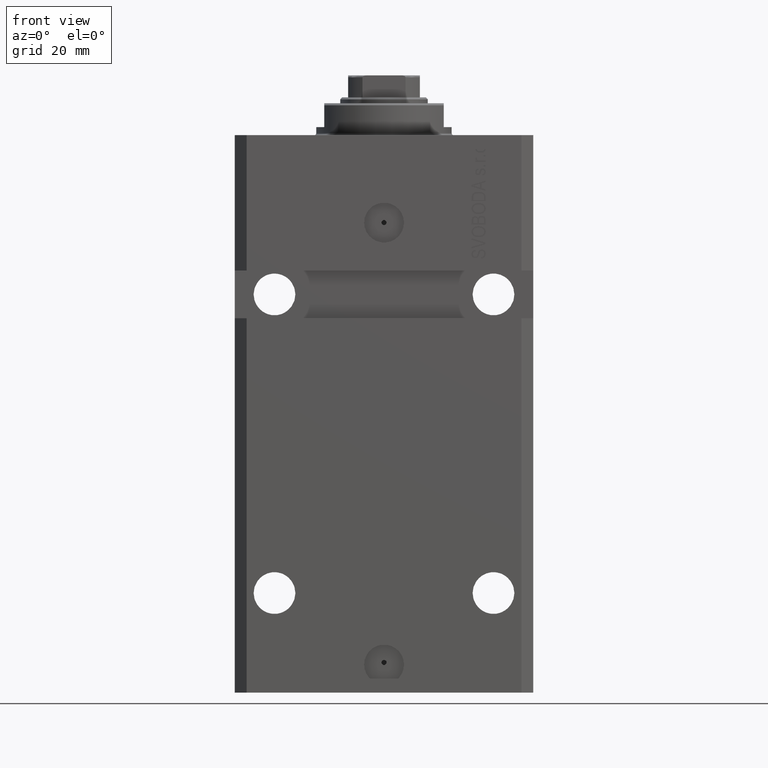
[diagram: clean part render]
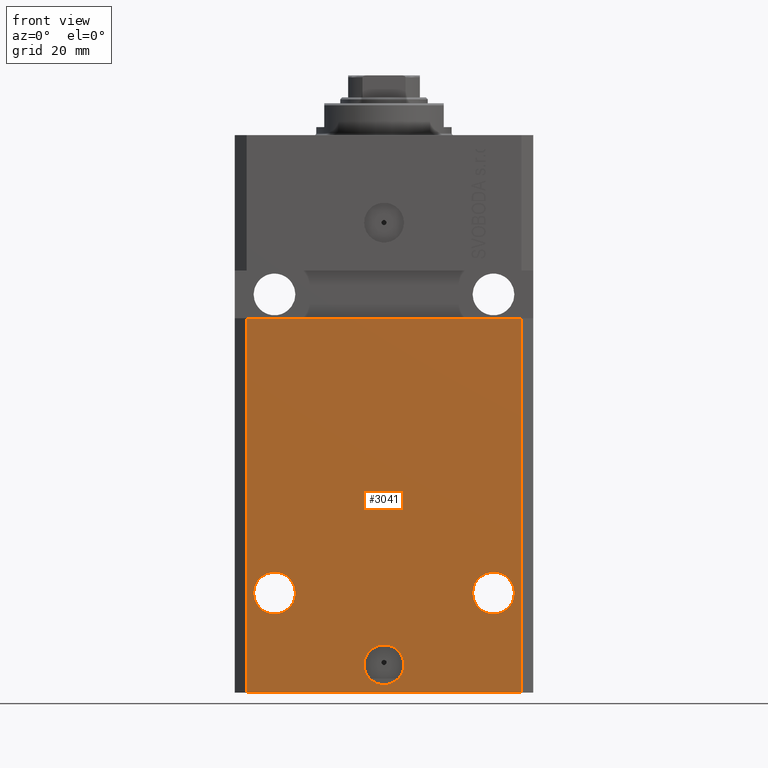
[diagram: same view with one face highlighted and labeled with its STEP entity id]
A machine part, front view. The second image highlights one B-rep face of the part: STEP entity #3041.
In plain terms, the highlighted planar face has unit normal (0, -1, 0).
Its self-contained STEP definition (entity closure, byte-faithful):
#304 = DIRECTION ( 'NONE',  ( 0.000000000000000000, 0.000000000000000000, 1.000000000000000000 ) ) ;
#488 = CARTESIAN_POINT ( 'NONE',  ( -27.50000000000001776, -27.50000000000000000, -114.9999999999999858 ) ) ;
#544 = EDGE_CURVE ( 'NONE', #12171, #47175, #22879, .T. ) ;
#791 = CARTESIAN_POINT ( 'NONE',  ( 32.75000000000001421, -27.49999999999999289, -114.9999999999999858 ) ) ;
#940 = AXIS2_PLACEMENT_3D ( 'NONE', #38496, #34685, #42071 ) ;
#1527 = EDGE_CURVE ( 'NONE', #38742, #19622, #39065, .T. ) ;
#1789 = EDGE_CURVE ( 'NONE', #19622, #38742, #39887, .T. ) ;
#2288 = VECTOR ( 'NONE', #304, 1000.000000000000000 ) ;
#2435 = AXIS2_PLACEMENT_3D ( 'NONE', #43610, #13936, #46737 ) ;
#2957 = CARTESIAN_POINT ( 'NONE',  ( -5.000000000000006217, -27.49999999999999645, -133.0000000000000000 ) ) ;
#3041 = ADVANCED_FACE ( 'NONE', ( #26905, #45067, #23044, #41928 ), #8421, .T. ) ;
#3400 = LINE ( 'NONE', #18004, #33751 ) ;
#4229 = CARTESIAN_POINT ( 'NONE',  ( -34.49999999999998579, -27.50000000000000000, -46.00000000000000000 ) ) ;
#4302 = DIRECTION ( 'NONE',  ( 1.176083712526788232E-16, -1.000000000000000000, 0.000000000000000000 ) ) ;
#4582 = EDGE_LOOP ( 'NONE', ( #7636, #24090 ) ) ;
#5497 = AXIS2_PLACEMENT_3D ( 'NONE', #23749, #31194, #41469 ) ;
#5906 = CARTESIAN_POINT ( 'NONE',  ( -32.75000000000001421, -27.50000000000000000, -114.9999999999999858 ) ) ;
#7244 = LINE ( 'NONE', #36932, #2288 ) ;
#7617 = DIRECTION ( 'NONE',  ( 1.000000000000000000, 0.000000000000000000, 0.000000000000000000 ) ) ;
#7636 = ORIENTED_EDGE ( 'NONE', *, *, #44489, .F. ) ;
#8421 = PLANE ( 'NONE',  #5497 ) ;
#9077 = CARTESIAN_POINT ( 'NONE',  ( 34.49999999999999289, -27.49999999999999645, -140.0000000000000000 ) ) ;
#12124 = VERTEX_POINT ( 'NONE', #27750 ) ;
#12171 = VERTEX_POINT ( 'NONE', #4229 ) ;
#12603 = CARTESIAN_POINT ( 'NONE',  ( 34.49999999999999289, -27.49999999999999289, -45.99999999999999289 ) ) ;
#13639 = DIRECTION ( 'NONE',  ( 1.176083712526788232E-16, -1.000000000000000000, 0.000000000000000000 ) ) ;
#13936 = DIRECTION ( 'NONE',  ( 1.176083712526788232E-16, -1.000000000000000000, 0.000000000000000000 ) ) ;
#14063 = DIRECTION ( 'NONE',  ( 1.000000000000000000, 0.000000000000000000, 0.000000000000000000 ) ) ;
#14224 = EDGE_CURVE ( 'NONE', #12124, #12171, #3400, .T. ) ;
#14240 = EDGE_CURVE ( 'NONE', #26480, #27761, #27683, .T. ) ;
#16197 = ORIENTED_EDGE ( 'NONE', *, *, #40075, .F. ) ;
#17163 = VERTEX_POINT ( 'NONE', #9077 ) ;
#17319 = EDGE_LOOP ( 'NONE', ( #20049, #22208 ) ) ;
#17459 = CARTESIAN_POINT ( 'NONE',  ( -37.50000000000000000, -27.50000000000000000, -46.00000000000000000 ) ) ;
#17942 = CARTESIAN_POINT ( 'NONE',  ( -27.50000000000001776, -27.50000000000000000, -114.9999999999999858 ) ) ;
#18004 = CARTESIAN_POINT ( 'NONE',  ( -34.49999999999998579, -27.49999999999999645, -140.0000000000000000 ) ) ;
#18144 = ORIENTED_EDGE ( 'NONE', *, *, #28254, .F. ) ;
#18509 = DIRECTION ( 'NONE',  ( 1.000000000000000000, 0.000000000000000000, 0.000000000000000000 ) ) ;
#19622 = VERTEX_POINT ( 'NONE', #34387 ) ;
#20049 = ORIENTED_EDGE ( 'NONE', *, *, #1789, .F. ) ;
#20377 = EDGE_LOOP ( 'NONE', ( #18144, #16197 ) ) ;
#21134 = DIRECTION ( 'NONE',  ( 0.000000000000000000, 0.000000000000000000, 1.000000000000000000 ) ) ;
#21537 = DIRECTION ( 'NONE',  ( -1.000000000000000000, 0.000000000000000000, 0.000000000000000000 ) ) ;
#22208 = ORIENTED_EDGE ( 'NONE', *, *, #1527, .F. ) ;
#22489 = ORIENTED_EDGE ( 'NONE', *, *, #14224, .F. ) ;
#22879 = LINE ( 'NONE', #17459, #26835 ) ;
#23044 = FACE_BOUND ( 'NONE', #20377, .T. ) ;
#23749 = CARTESIAN_POINT ( 'NONE',  ( -34.49999999999998579, -27.49999999999999645, -140.0000000000000000 ) ) ;
#24090 = ORIENTED_EDGE ( 'NONE', *, *, #14240, .F. ) ;
#25321 = DIRECTION ( 'NONE',  ( 1.176083712526788232E-16, -1.000000000000000000, 0.000000000000000000 ) ) ;
#25423 = CIRCLE ( 'NONE', #940, 5.249999999999997335 ) ;
#26187 = CARTESIAN_POINT ( 'NONE',  ( -34.49999999999998579, -27.49999999999999645, -140.0000000000000000 ) ) ;
#26229 = VERTEX_POINT ( 'NONE', #5906 ) ;
#26480 = VERTEX_POINT ( 'NONE', #33896 ) ;
#26835 = VECTOR ( 'NONE', #29848, 1000.000000000000000 ) ;
#26905 = FACE_BOUND ( 'NONE', #17319, .T. ) ;
#27683 = CIRCLE ( 'NONE', #2435, 5.249999999999997335 ) ;
#27750 = CARTESIAN_POINT ( 'NONE',  ( -34.49999999999998579, -27.49999999999999645, -140.0000000000000000 ) ) ;
#27761 = VERTEX_POINT ( 'NONE', #791 ) ;
#28254 = EDGE_CURVE ( 'NONE', #45390, #26229, #32628, .T. ) ;
#29455 = CARTESIAN_POINT ( 'NONE',  ( 0.000000000000000000, -27.49999999999999645, -133.0000000000000000 ) ) ;
#29840 = CIRCLE ( 'NONE', #35937, 5.249999999999997335 ) ;
#29848 = DIRECTION ( 'NONE',  ( 1.000000000000000000, 9.251858538542972814E-17, 9.251858538542972814E-17 ) ) ;
#30200 = DIRECTION ( 'NONE',  ( -1.000000000000000000, 0.000000000000000000, 0.000000000000000000 ) ) ;
#30262 = LINE ( 'NONE', #26187, #30519 ) ;
#30314 = AXIS2_PLACEMENT_3D ( 'NONE', #17942, #13639, #21537 ) ;
#30519 = VECTOR ( 'NONE', #18509, 1000.000000000000000 ) ;
#31111 = ORIENTED_EDGE ( 'NONE', *, *, #36454, .T. ) ;
#31194 = DIRECTION ( 'NONE',  ( 0.000000000000000000, -1.000000000000000000, 0.000000000000000000 ) ) ;
#32225 = AXIS2_PLACEMENT_3D ( 'NONE', #29455, #44025, #7617 ) ;
#32628 = CIRCLE ( 'NONE', #30314, 5.249999999999997335 ) ;
#33426 = EDGE_CURVE ( 'NONE', #12124, #17163, #30262, .T. ) ;
#33751 = VECTOR ( 'NONE', #21134, 1000.000000000000000 ) ;
#33896 = CARTESIAN_POINT ( 'NONE',  ( 22.25000000000002132, -27.49999999999999289, -114.9999999999999858 ) ) ;
#34387 = CARTESIAN_POINT ( 'NONE',  ( 5.000000000000006217, -27.49999999999999645, -133.0000000000000000 ) ) ;
#34685 = DIRECTION ( 'NONE',  ( 1.176083712526788232E-16, -1.000000000000000000, 0.000000000000000000 ) ) ;
#35404 = CARTESIAN_POINT ( 'NONE',  ( -22.25000000000002132, -27.50000000000000000, -114.9999999999999858 ) ) ;
#35890 = ORIENTED_EDGE ( 'NONE', *, *, #544, .F. ) ;
#35937 = AXIS2_PLACEMENT_3D ( 'NONE', #488, #4302, #30200 ) ;
#36454 = EDGE_CURVE ( 'NONE', #17163, #47175, #7244, .T. ) ;
#36932 = CARTESIAN_POINT ( 'NONE',  ( 34.49999999999999289, -27.49999999999999645, -140.0000000000000000 ) ) ;
#38496 = CARTESIAN_POINT ( 'NONE',  ( 27.50000000000001776, -27.49999999999999289, -114.9999999999999858 ) ) ;
#38742 = VERTEX_POINT ( 'NONE', #2957 ) ;
#39065 = CIRCLE ( 'NONE', #32225, 5.000000000000006217 ) ;
#39887 = CIRCLE ( 'NONE', #46007, 5.000000000000006217 ) ;
#40075 = EDGE_CURVE ( 'NONE', #26229, #45390, #29840, .T. ) ;
#41469 = DIRECTION ( 'NONE',  ( 0.000000000000000000, -0.000000000000000000, -1.000000000000000000 ) ) ;
#41928 = FACE_OUTER_BOUND ( 'NONE', #42231, .T. ) ;
#42071 = DIRECTION ( 'NONE',  ( 1.000000000000000000, 0.000000000000000000, 0.000000000000000000 ) ) ;
#42231 = EDGE_LOOP ( 'NONE', ( #35890, #22489, #42258, #31111 ) ) ;
#42258 = ORIENTED_EDGE ( 'NONE', *, *, #33426, .T. ) ;
#43610 = CARTESIAN_POINT ( 'NONE',  ( 27.50000000000001776, -27.49999999999999289, -114.9999999999999858 ) ) ;
#44025 = DIRECTION ( 'NONE',  ( 1.176083712526788232E-16, -1.000000000000000000, 0.000000000000000000 ) ) ;
#44489 = EDGE_CURVE ( 'NONE', #27761, #26480, #25423, .T. ) ;
#45067 = FACE_BOUND ( 'NONE', #4582, .T. ) ;
#45390 = VERTEX_POINT ( 'NONE', #35404 ) ;
#46007 = AXIS2_PLACEMENT_3D ( 'NONE', #47331, #25321, #14063 ) ;
#46737 = DIRECTION ( 'NONE',  ( 1.000000000000000000, 0.000000000000000000, 0.000000000000000000 ) ) ;
#47175 = VERTEX_POINT ( 'NONE', #12603 ) ;
#47331 = CARTESIAN_POINT ( 'NONE',  ( 0.000000000000000000, -27.49999999999999645, -133.0000000000000000 ) ) ;